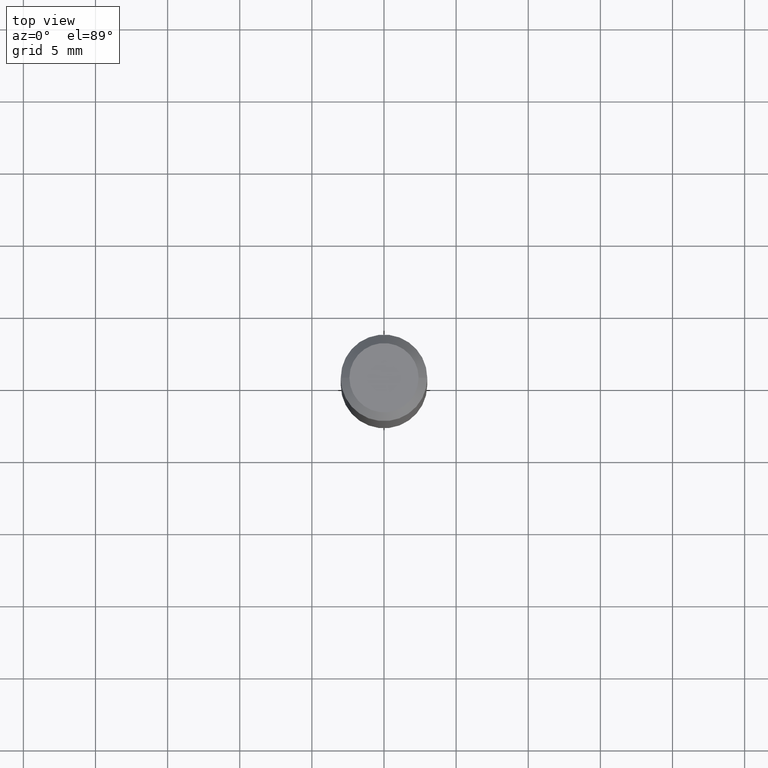
[diagram: clean part render]
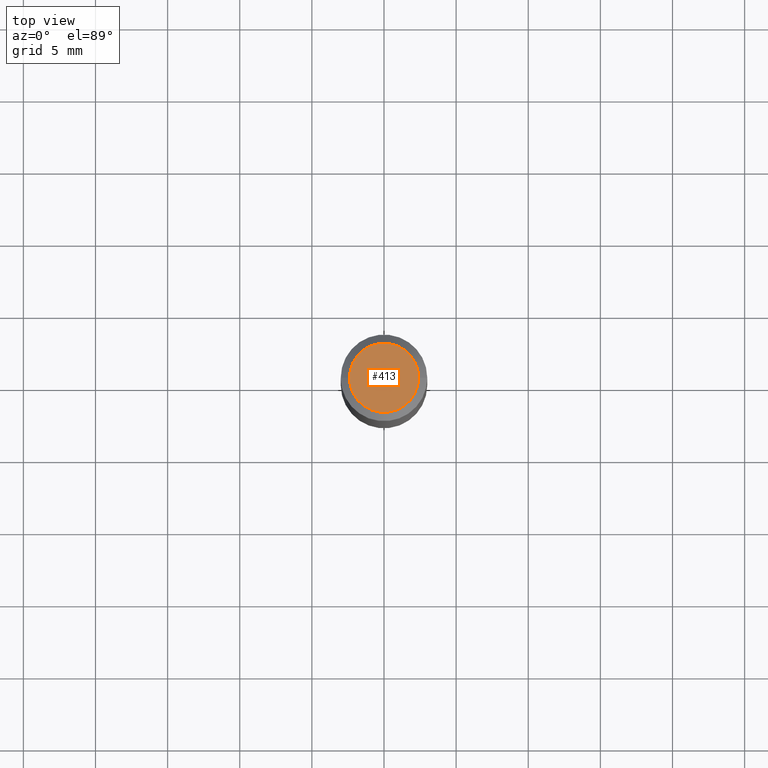
[diagram: same view with one face highlighted and labeled with its STEP entity id]
A machine part, top view. The second image highlights one B-rep face of the part: STEP entity #413.
In plain terms, the highlighted planar face has unit normal (0, -0, -1).
Its self-contained STEP definition (entity closure, byte-faithful):
#24 = EDGE_LOOP ( 'NONE', ( #386, #293 ) ) ;
#58 = AXIS2_PLACEMENT_3D ( 'NONE', #90, #245, #351 ) ;
#77 = DIRECTION ( 'NONE',  ( -1.000000000000000000, 6.982962677686265922E-15, -4.876176775795935793E-29 ) ) ;
#90 = CARTESIAN_POINT ( 'NONE',  ( 7.545787641473140628E-46, -1.077338491108201769E-31, -3.085620075131671975E-17 ) ) ;
#120 = AXIS2_PLACEMENT_3D ( 'NONE', #159, #126, #77 ) ;
#126 = DIRECTION ( 'NONE',  ( 2.438088387897960049E-29, -3.491481338843145188E-15, -1.000000000000000000 ) ) ;
#136 = CIRCLE ( 'NONE', #58, 0.09447999999999998066 ) ;
#159 = CARTESIAN_POINT ( 'NONE',  ( 3.772893820736570314E-46, -5.386692455541008845E-32, -1.542810037565835988E-17 ) ) ;
#160 = DIRECTION ( 'NONE',  ( 1.000000000000000000, -6.982962677686267499E-15, 4.875432709231658792E-29 ) ) ;
#162 = CARTESIAN_POINT ( 'NONE',  ( -0.09447999999999998066, 7.009847083995354710E-16, -3.085620075132147757E-17 ) ) ;
#241 = VERTEX_POINT ( 'NONE', #162 ) ;
#245 = DIRECTION ( 'NONE',  ( -2.445468806185136597E-29, 3.491481338843145583E-15, 1.000000000000000000 ) ) ;
#274 = VERTEX_POINT ( 'NONE', #361 ) ;
#293 = ORIENTED_EDGE ( 'NONE', *, *, #326, .T. ) ;
#302 = EDGE_CURVE ( 'NONE', #241, #274, #136, .T. ) ;
#323 = CIRCLE ( 'NONE', #458, 0.09447999999999998066 ) ;
#326 = EDGE_CURVE ( 'NONE', #274, #241, #323, .T. ) ;
#337 = PLANE ( 'NONE',  #120 ) ;
#351 = DIRECTION ( 'NONE',  ( 1.000000000000000000, -6.982962677686267499E-15, 4.875432709231658792E-29 ) ) ;
#355 = FACE_OUTER_BOUND ( 'NONE', #24, .T. ) ;
#361 = CARTESIAN_POINT ( 'NONE',  ( 0.09447999999999998066, -7.704367267948738690E-16, -3.085620075131172158E-17 ) ) ;
#386 = ORIENTED_EDGE ( 'NONE', *, *, #302, .T. ) ;
#413 = ADVANCED_FACE ( 'NONE', ( #355 ), #337, .F. ) ;
#458 = AXIS2_PLACEMENT_3D ( 'NONE', #518, #465, #160 ) ;
#465 = DIRECTION ( 'NONE',  ( -2.445468806185136597E-29, 3.491481338843145583E-15, 1.000000000000000000 ) ) ;
#518 = CARTESIAN_POINT ( 'NONE',  ( 7.545787641473140628E-46, -1.077338491108201769E-31, -3.085620075131671975E-17 ) ) ;